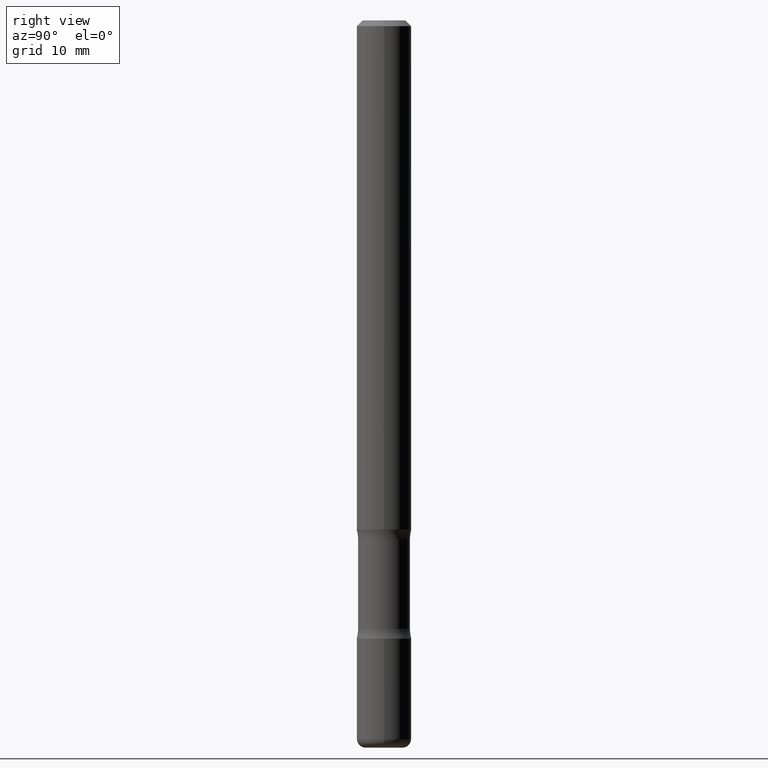
[diagram: clean part render]
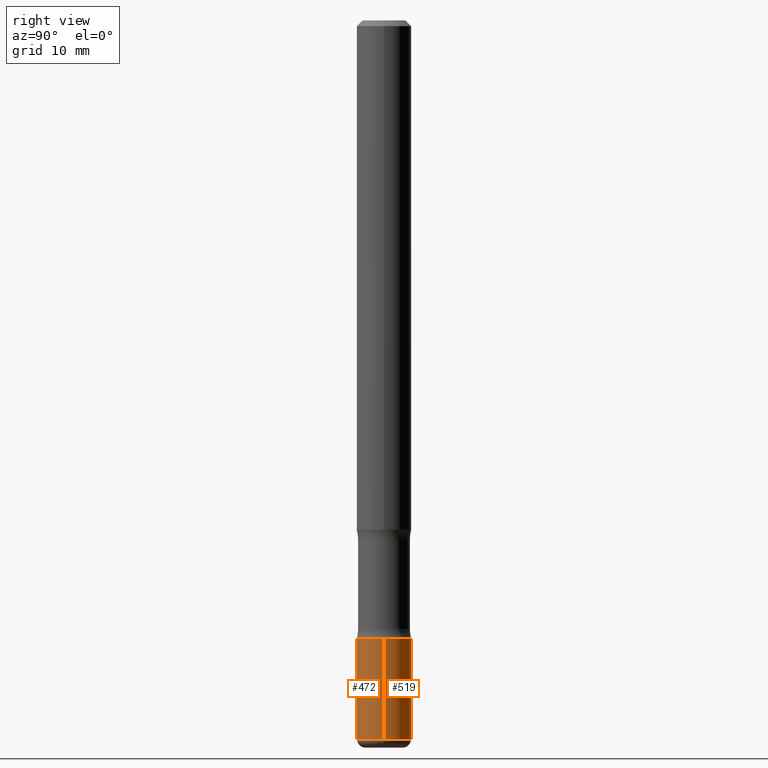
[diagram: same view with one multi-face feature highlighted, each face labeled with its STEP entity id]
A machine part, right view. The highlighted faces form ONE feature: a constant-radius fillet chain: 2 tangent blend faces with common blend radius 2.3813 mm. The faces share edges in the B-rep.
Their STEP definitions:
[1] entity #472 (Cylinder):
#3 = CIRCLE ( 'NONE', #419, 0.09375000000000009714 ) ;
#28 = DIRECTION ( 'NONE',  ( -2.445468806185136877E-29, 3.491481338843145188E-15, 1.000000000000000000 ) ) ;
#45 = CIRCLE ( 'NONE', #109, 0.09375000000000002776 ) ;
#66 = FACE_OUTER_BOUND ( 'NONE', #95, .T. ) ;
#95 = EDGE_LOOP ( 'NONE', ( #258, #349, #210, #204 ) ) ;
#99 = DIRECTION ( 'NONE',  ( 1.000000000000000000, -6.982962677686270655E-15, 0.000000000000000000 ) ) ;
#104 = VERTEX_POINT ( 'NONE', #250 ) ;
#109 = AXIS2_PLACEMENT_3D ( 'NONE', #157, #323, #99 ) ;
#115 = CARTESIAN_POINT ( 'NONE',  ( -0.09374999999999994449, -7.957825092167479227E-15, -2.470000000000000639 ) ) ;
#140 = VERTEX_POINT ( 'NONE', #465 ) ;
#143 = CARTESIAN_POINT ( 'NONE',  ( 0.09375000000000005551, -6.546527510330878985E-16, 4.571415727308692608E-30 ) ) ;
#153 = EDGE_CURVE ( 'NONE', #460, #432, #3, .T. ) ;
#157 = CARTESIAN_POINT ( 'NONE',  ( 5.196621213143415268E-29, -7.419397845041685201E-15, -2.125000000000000000 ) ) ;
#167 = EDGE_CURVE ( 'NONE', #460, #104, #199, .T. ) ;
#193 = DIRECTION ( 'NONE',  ( -2.445468806185136597E-29, 3.491481338843145583E-15, 1.000000000000000000 ) ) ;
#194 = DIRECTION ( 'NONE',  ( -2.445468806185136597E-29, 3.491481338843145583E-15, 1.000000000000000000 ) ) ;
#199 = LINE ( 'NONE', #545, #318 ) ;
#204 = ORIENTED_EDGE ( 'NONE', *, *, #492, .F. ) ;
#210 = ORIENTED_EDGE ( 'NONE', *, *, #401, .T. ) ;
#225 = CYLINDRICAL_SURFACE ( 'NONE', #478, 0.09375000000000005551 ) ;
#234 = DIRECTION ( 'NONE',  ( 1.000000000000000000, -6.982962677686266711E-15, 4.876176775795935793E-29 ) ) ;
#250 = CARTESIAN_POINT ( 'NONE',  ( -0.09375000000000002776, -7.355544561217034463E-15, -2.125000000000000000 ) ) ;
#258 = ORIENTED_EDGE ( 'NONE', *, *, #167, .F. ) ;
#275 = VECTOR ( 'NONE', #308, 39.37007874015748143 ) ;
#308 = DIRECTION ( 'NONE',  ( -2.445468806185136877E-29, 3.491481338843145188E-15, 1.000000000000000000 ) ) ;
#318 = VECTOR ( 'NONE', #28, 39.37007874015748143 ) ;
#323 = DIRECTION ( 'NONE',  ( -2.445468806185136597E-29, 3.491481338843145583E-15, 1.000000000000000000 ) ) ;
#349 = ORIENTED_EDGE ( 'NONE', *, *, #153, .T. ) ;
#401 = EDGE_CURVE ( 'NONE', #432, #140, #541, .T. ) ;
#416 = DIRECTION ( 'NONE',  ( 1.000000000000000000, -6.982962677686265922E-15, 0.000000000000000000 ) ) ;
#419 = AXIS2_PLACEMENT_3D ( 'NONE', #461, #194, #416 ) ;
#432 = VERTEX_POINT ( 'NONE', #459 ) ;
#459 = CARTESIAN_POINT ( 'NONE',  ( 0.09374999999999994449, -9.278611657975658288E-15, -2.470000000000000639 ) ) ;
#460 = VERTEX_POINT ( 'NONE', #115 ) ;
#461 = CARTESIAN_POINT ( 'NONE',  ( 6.040307951277289098E-29, -8.623958906942573151E-15, -2.470000000000000639 ) ) ;
#465 = CARTESIAN_POINT ( 'NONE',  ( 0.09375000000000002776, -8.074050596074771916E-15, -2.125000000000000000 ) ) ;
#472 = ADVANCED_FACE ( 'NONE', ( #66 ), #225, .T. ) ;
#478 = AXIS2_PLACEMENT_3D ( 'NONE', #505, #193, #234 ) ;
#492 = EDGE_CURVE ( 'NONE', #104, #140, #45, .T. ) ;
#505 = CARTESIAN_POINT ( 'NONE',  ( 0.000000000000000000, 0.000000000000000000, 0.000000000000000000 ) ) ;
#541 = LINE ( 'NONE', #143, #275 ) ;
#545 = CARTESIAN_POINT ( 'NONE',  ( -0.09375000000000005551, 6.661338147750943187E-16, -4.611501647113976798E-30 ) ) ;
[2] entity #519 (Cylinder):
#28 = DIRECTION ( 'NONE',  ( -2.445468806185136877E-29, 3.491481338843145188E-15, 1.000000000000000000 ) ) ;
#30 = DIRECTION ( 'NONE',  ( 1.000000000000000000, -6.982962677686270655E-15, 0.000000000000000000 ) ) ;
#65 = DIRECTION ( 'NONE',  ( 1.000000000000000000, -6.982962677686266711E-15, 4.876176775795935793E-29 ) ) ;
#104 = VERTEX_POINT ( 'NONE', #250 ) ;
#110 = CYLINDRICAL_SURFACE ( 'NONE', #503, 0.09375000000000005551 ) ;
#115 = CARTESIAN_POINT ( 'NONE',  ( -0.09374999999999994449, -7.957825092167479227E-15, -2.470000000000000639 ) ) ;
#135 = CARTESIAN_POINT ( 'NONE',  ( 6.040307951277289098E-29, -8.623958906942573151E-15, -2.470000000000000639 ) ) ;
#138 = EDGE_LOOP ( 'NONE', ( #301, #216, #382, #273 ) ) ;
#140 = VERTEX_POINT ( 'NONE', #465 ) ;
#143 = CARTESIAN_POINT ( 'NONE',  ( 0.09375000000000005551, -6.546527510330878985E-16, 4.571415727308692608E-30 ) ) ;
#151 = FACE_OUTER_BOUND ( 'NONE', #138, .T. ) ;
#161 = AXIS2_PLACEMENT_3D ( 'NONE', #514, #285, #30 ) ;
#167 = EDGE_CURVE ( 'NONE', #460, #104, #199, .T. ) ;
#199 = LINE ( 'NONE', #545, #318 ) ;
#216 = ORIENTED_EDGE ( 'NONE', *, *, #167, .T. ) ;
#246 = CIRCLE ( 'NONE', #161, 0.09375000000000002776 ) ;
#250 = CARTESIAN_POINT ( 'NONE',  ( -0.09375000000000002776, -7.355544561217034463E-15, -2.125000000000000000 ) ) ;
#270 = CARTESIAN_POINT ( 'NONE',  ( 0.000000000000000000, 0.000000000000000000, 0.000000000000000000 ) ) ;
#273 = ORIENTED_EDGE ( 'NONE', *, *, #401, .F. ) ;
#275 = VECTOR ( 'NONE', #308, 39.37007874015748143 ) ;
#285 = DIRECTION ( 'NONE',  ( -2.445468806185136597E-29, 3.491481338843145583E-15, 1.000000000000000000 ) ) ;
#290 = CIRCLE ( 'NONE', #543, 0.09375000000000009714 ) ;
#301 = ORIENTED_EDGE ( 'NONE', *, *, #509, .T. ) ;
#308 = DIRECTION ( 'NONE',  ( -2.445468806185136877E-29, 3.491481338843145188E-15, 1.000000000000000000 ) ) ;
#318 = VECTOR ( 'NONE', #28, 39.37007874015748143 ) ;
#358 = EDGE_CURVE ( 'NONE', #140, #104, #246, .T. ) ;
#382 = ORIENTED_EDGE ( 'NONE', *, *, #358, .F. ) ;
#401 = EDGE_CURVE ( 'NONE', #432, #140, #541, .T. ) ;
#432 = VERTEX_POINT ( 'NONE', #459 ) ;
#449 = DIRECTION ( 'NONE',  ( -2.445468806185136597E-29, 3.491481338843145583E-15, 1.000000000000000000 ) ) ;
#453 = DIRECTION ( 'NONE',  ( 1.000000000000000000, -6.982962677686265922E-15, 0.000000000000000000 ) ) ;
#459 = CARTESIAN_POINT ( 'NONE',  ( 0.09374999999999994449, -9.278611657975658288E-15, -2.470000000000000639 ) ) ;
#460 = VERTEX_POINT ( 'NONE', #115 ) ;
#465 = CARTESIAN_POINT ( 'NONE',  ( 0.09375000000000002776, -8.074050596074771916E-15, -2.125000000000000000 ) ) ;
#490 = DIRECTION ( 'NONE',  ( -2.445468806185136597E-29, 3.491481338843145583E-15, 1.000000000000000000 ) ) ;
#503 = AXIS2_PLACEMENT_3D ( 'NONE', #270, #449, #65 ) ;
#509 = EDGE_CURVE ( 'NONE', #432, #460, #290, .T. ) ;
#514 = CARTESIAN_POINT ( 'NONE',  ( 5.196621213143415268E-29, -7.419397845041685201E-15, -2.125000000000000000 ) ) ;
#519 = ADVANCED_FACE ( 'NONE', ( #151 ), #110, .T. ) ;
#541 = LINE ( 'NONE', #143, #275 ) ;
#543 = AXIS2_PLACEMENT_3D ( 'NONE', #135, #490, #453 ) ;
#545 = CARTESIAN_POINT ( 'NONE',  ( -0.09375000000000005551, 6.661338147750943187E-16, -4.611501647113976798E-30 ) ) ;